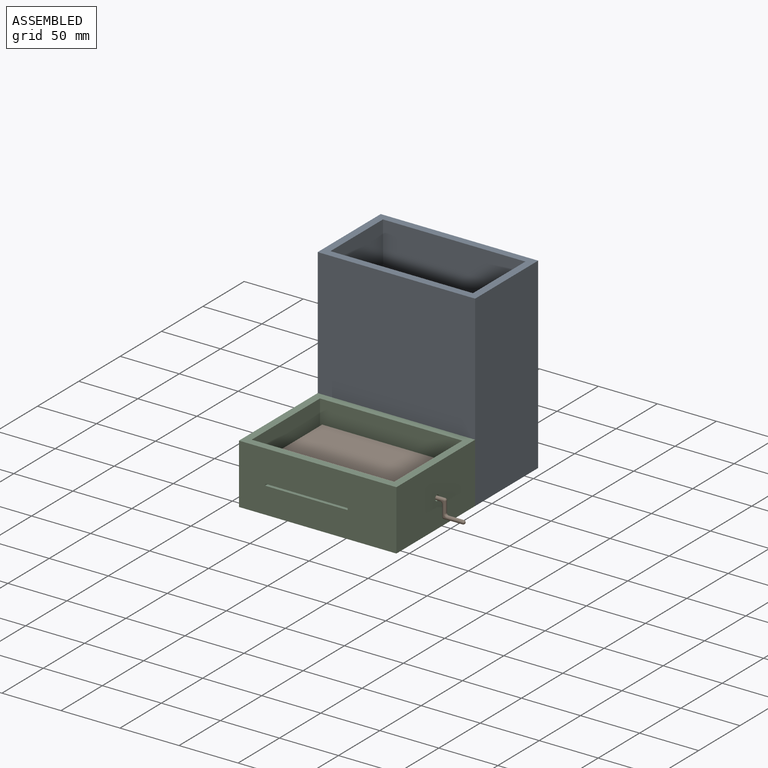
[diagram: assembled view]
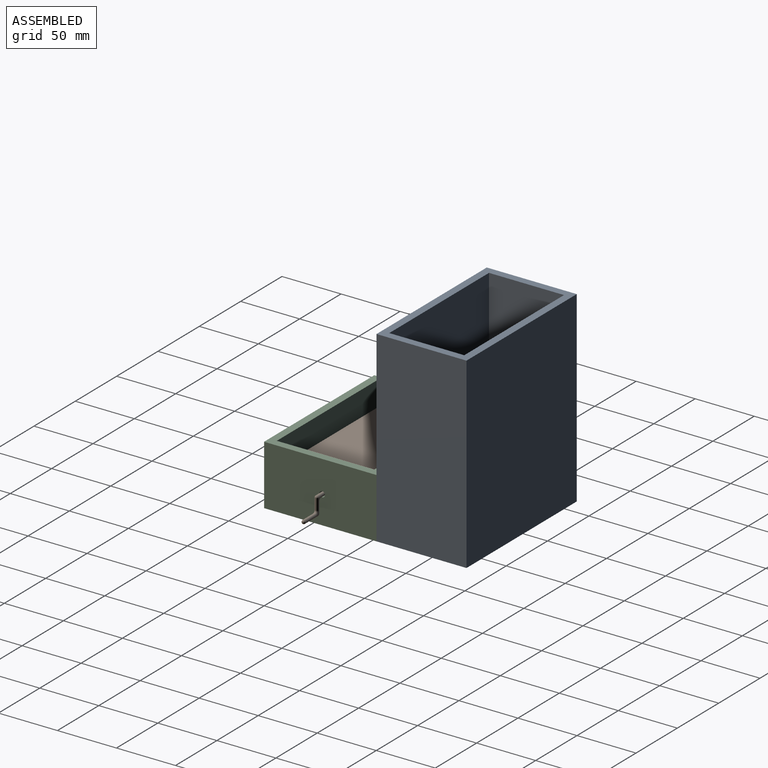
[diagram: assembled view, second angle]
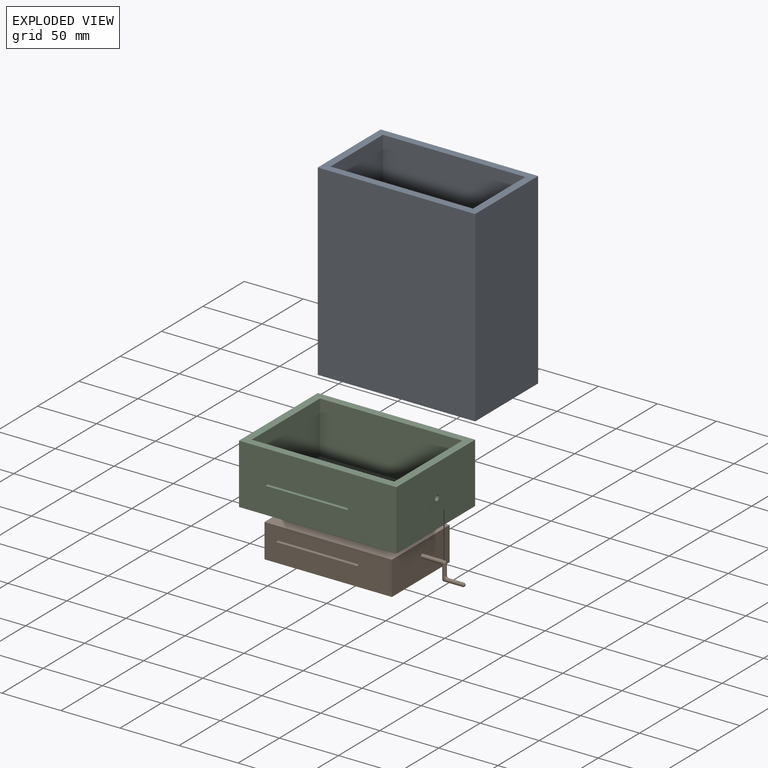
[diagram: exploded view]
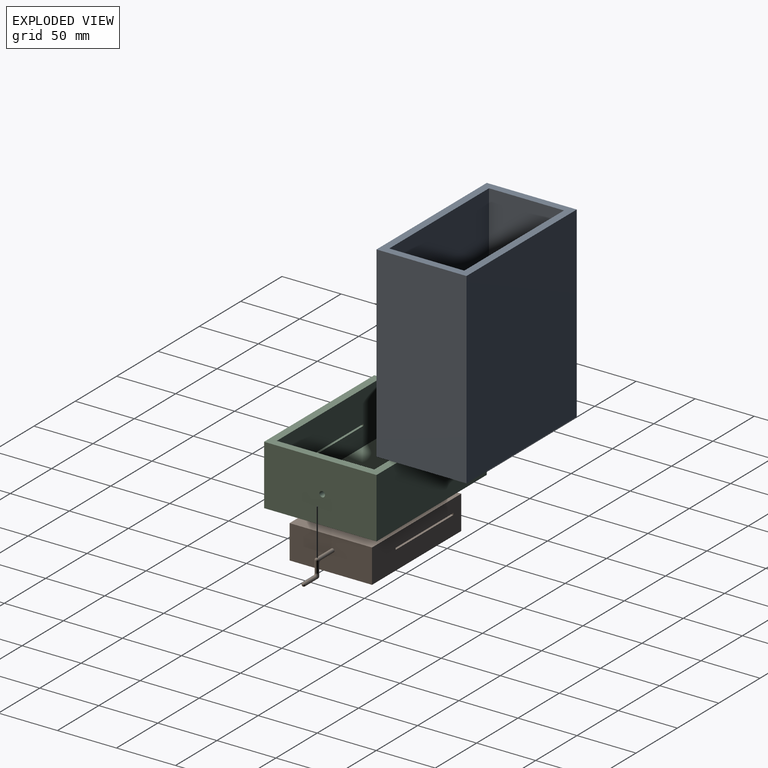
[diagram: exploded view, second angle]
ASSEMBLY  parts=3 mates=3
PART A: 11 faces, bbox 133.4x76.2x158.8 mm
  f0: plane 158.75x76.2mm, normal (1,0,0), area 12096.8mm2, adj f1,f3,f4,f9
  f1: plane 158.75x133.35mm, normal (0,1,0), area 21169.3mm2, adj f0,f2,f4,f9
  f2: plane 158.75x76.2mm, normal (-1,0,0), area 12096.8mm2, adj f1,f3,f4,f9
  f3: plane 158.75x133.35mm, normal (0,-1,0), area 21169.3mm2, adj f0,f2,f4,f9
  f4: plane 133.35x76.2mm, normal (0,0,-1), area 10161.3mm2, adj f0,f1,f2,f3
  f5: plane 152.4x63.5mm, normal (-1,0,0), area 9677.4mm2, adj f6,f8,f9,f10
  f6: plane 152.4x120.65mm, normal (0,1,0), area 18387.1mm2, adj f5,f7,f9,f10
  f7: plane 152.4x63.5mm, normal (1,0,0), area 9677.4mm2, adj f6,f8,f9,f10
  f8: plane 152.4x120.65mm, normal (0,-1,0), area 18387.1mm2, adj f5,f7,f9,f10
  f9: plane 133.35x76.2mm, normal (0,0,1), area 2500mm2, adj f0,f1,f2,f3,f5,f6,f7,f8
  f10: plane 120.65x63.5mm, normal (0,0,1), area 7661.3mm2, adj f5,f6,f7,f8
PART B: 22 faces, bbox 144.5x69.9x28.6 mm
  f0: plane 3.18x3.18mm, normal (0,-1,0), area 2.2mm2, adj f15,f16,f19
  f1: plane 3.18x3.18mm, normal (0,1,0), area 2.2mm2, adj f15,f16,f19
  f2: plane 69.85x28.58mm, normal (1,0,0), area 1988mm2, adj f3,f5,f6,f7,f18
  f3: plane 107.95x28.58mm, normal (0,1,0), area 2973.8mm2, adj f2,f4,f6,f7,f8,f9,f10,f11
  f4: plane 69.85x28.58mm, normal (-1,0,0), area 1996mm2, adj f3,f5,f6,f7
  f5: plane 107.95x28.58mm, normal (0,-1,0), area 2973.8mm2, adj f2,f4,f6,f7,f8,f9,f10,f11
  f6: plane 107.95x69.85mm, normal (0,0,1), area 7540.3mm2, adj f2,f3,f4,f5
  f7: plane 107.95x69.85mm, normal (0,0,-1), area 7540.3mm2, adj f2,f3,f4,f5
  f8: plane 69.85x69.85mm, normal (0,0,-1), area 4879mm2, adj f3,f5,f9,f11
  f9: plane 69.85x1.59mm, normal (1,0,0), area 110.9mm2, adj f3,f5,f8,f10
  f10: plane 69.85x69.85mm, normal (0,0,1), area 4879mm2, adj f3,f5,f9,f11
  f11: plane 69.85x1.59mm, normal (-1,0,0), area 110.9mm2, adj f3,f5,f8,f10
  f12: plane 3.18x3.18mm, normal (0,-1,0), area 2.2mm2, adj f18,f19,f21
  f13: plane 3.18x3.18mm, normal (0,1,0), area 2.2mm2, adj f18,f19,f21
  f14: sphere r=1.59mm, area 15.8mm2, adj f15
  f15: cylinder r=1.59mm len=15.88mm, axis (1,0,0), area 142.5mm2, adj f0,f1,f14,f16,f20
  f16: torus R=3.17mm, axis (0,-1,0), area 17mm2, adj f0,f1,f15,f19
  f17: sphere r=1.59mm, area 7.9mm2, adj f18,f19
  f18: cylinder r=1.59mm len=19.05mm, axis (1,0,0), area 174.2mm2, adj f2,f12,f13,f17,f21
  f19: cylinder r=1.59mm len=12.7mm, axis (0,0,-1), area 95mm2, adj f0,f1,f12,f13,f16,f17,f20,f21
  f20: sphere r=1.59mm, area 7.9mm2, adj f15,f19
  f21: torus R=3.17mm, axis (0,-1,0), area 17mm2, adj f12,f13,f18,f19
PART C: 16 faces, bbox 133.4x95.3x50.8 mm
  f0: plane 133.35x50.8mm, normal (0,1,0), area 6774.2mm2, adj f1,f3,f4,f9
  f1: plane 95.25x50.8mm, normal (-1,0,0), area 4838.7mm2, adj f0,f2,f4,f9
  f2: plane 133.35x50.8mm, normal (0,-1,0), area 6663.3mm2, adj f1,f3,f4,f9,f11,f12,f13,f14
  f3: plane 95.25x50.8mm, normal (1,0,0), area 4820.9mm2, adj f0,f2,f4,f9,f15
  f4: plane 133.35x95.25mm, normal (0,0,-1), area 12701.6mm2, adj f0,f1,f2,f3
  f5: plane 82.55x44.45mm, normal (-1,0,0), area 3651.5mm2, adj f6,f8,f9,f10,f15
  f6: plane 120.65x44.45mm, normal (0,1,0), area 5252mm2, adj f5,f7,f9,f10,f11,f12,f13,f14
  f7: plane 82.55x44.45mm, normal (1,0,0), area 3669.3mm2, adj f6,f8,f9,f10
  f8: plane 120.65x44.45mm, normal (0,-1,0), area 5362.9mm2, adj f5,f7,f9,f10
  f9: plane 133.35x95.25mm, normal (0,0,1), area 2741.9mm2, adj f0,f1,f2,f3,f5,f6,f7,f8
  f10: plane 120.65x82.55mm, normal (0,0,1), area 9959.7mm2, adj f5,f6,f7,f8
  f11: plane 6.35x1.59mm, normal (1,0,0), area 10.1mm2, adj f2,f6,f12,f13
  f12: plane 69.85x6.35mm, normal (0,0,-1), area 443.5mm2, adj f2,f6,f11,f14
  f13: plane 69.85x6.35mm, normal (0,0,1), area 443.5mm2, adj f2,f6,f11,f14
  f14: plane 6.35x1.59mm, normal (-1,0,0), area 10.1mm2, adj f2,f6,f12,f13
  f15: cylinder r=2.38mm len=6.35mm, axis (1,0,0), area 95mm2, adj f3,f5
PLACE A t=(82.36,197.65,17.18)mm
PLACE B t=(82.36,111.93,23.53)mm
PLACE C t=(82.36,111.93,17.18)mm
MATE fastened B.f7 <-> C.f10  axis (0,0,-1) through (82.36,111.93,23.53)mm
MATE planar C.f4 <-> A.f4  axis (0,0,-1) through (82.36,111.93,17.18)mm
MATE planar C.f0 <-> A.f3  axis (0,1,0) through (82.36,159.55,42.58)mm
